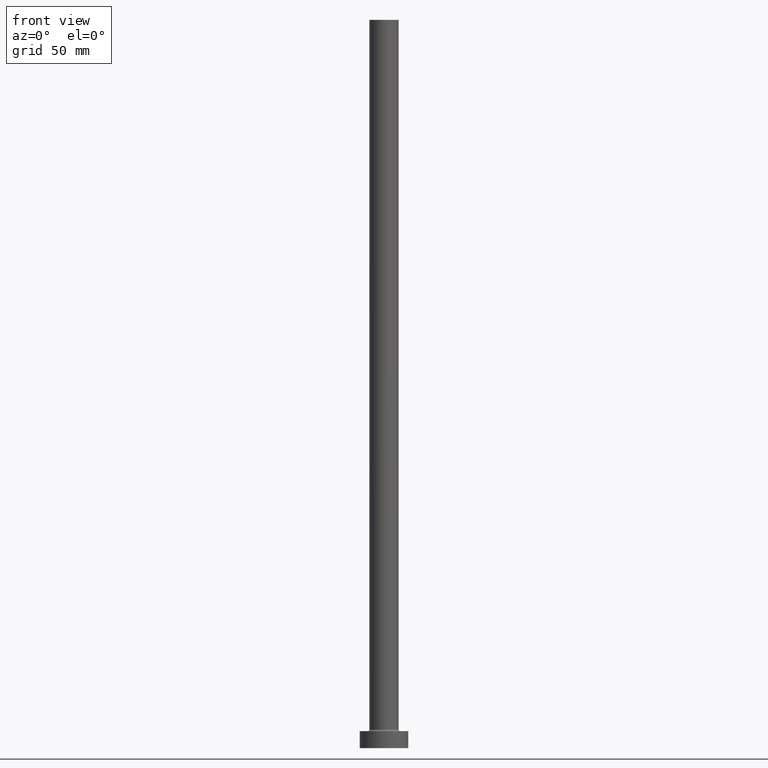
[diagram: clean part render]
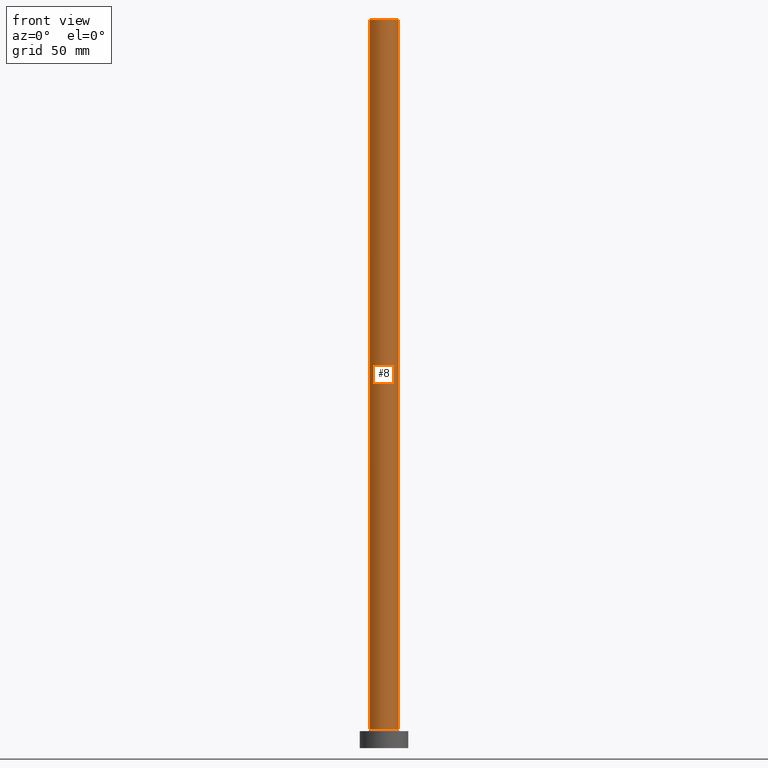
[diagram: same view with one face highlighted and labeled with its STEP entity id]
A machine part, front view. The second image highlights one B-rep face of the part: STEP entity #8.
In plain terms, the highlighted cylindrical surface (edge-blend (fillet) strip) has radius 6 mm, axis along (-0, -0, -1).
Its self-contained STEP definition (entity closure, byte-faithful):
#5 = DIRECTION ( 'NONE',  ( -0.000000000000000000, -0.000000000000000000, -1.000000000000000000 ) ) ;
#8 = ADVANCED_FACE ( 'NONE', ( #422 ), #386, .T. ) ;
#14 = CARTESIAN_POINT ( 'NONE',  ( 6.000000000000000888, 7.347880794884120722E-16, 7.699999999999985079 ) ) ;
#17 = LINE ( 'NONE', #86, #261 ) ;
#33 = EDGE_CURVE ( 'NONE', #347, #274, #377, .T. ) ;
#38 = DIRECTION ( 'NONE',  ( -1.000000000000000000, 0.000000000000000000, 0.000000000000000000 ) ) ;
#64 = VERTEX_POINT ( 'NONE', #369 ) ;
#65 = VERTEX_POINT ( 'NONE', #338 ) ;
#69 = CARTESIAN_POINT ( 'NONE',  ( 0.000000000000000000, 0.000000000000000000, 300.0000000000000000 ) ) ;
#86 = CARTESIAN_POINT ( 'NONE',  ( -6.000000000000000888, 0.000000000000000000, 300.0000000000000000 ) ) ;
#93 = CIRCLE ( 'NONE', #359, 6.000000000000000888 ) ;
#97 = ORIENTED_EDGE ( 'NONE', *, *, #368, .T. ) ;
#98 = DIRECTION ( 'NONE',  ( 1.000000000000000000, 0.000000000000000000, 0.000000000000000000 ) ) ;
#102 = DIRECTION ( 'NONE',  ( 1.000000000000000000, 0.000000000000000000, 0.000000000000000000 ) ) ;
#133 = DIRECTION ( 'NONE',  ( 0.000000000000000000, 0.000000000000000000, 1.000000000000000000 ) ) ;
#139 = CARTESIAN_POINT ( 'NONE',  ( 0.000000000000000000, 0.000000000000000000, 300.0000000000000000 ) ) ;
#158 = EDGE_CURVE ( 'NONE', #64, #274, #295, .T. ) ;
#226 = CARTESIAN_POINT ( 'NONE',  ( 6.000000000000000888, 7.347880794884120722E-16, 300.0000000000000000 ) ) ;
#240 = ORIENTED_EDGE ( 'NONE', *, *, #33, .T. ) ;
#261 = VECTOR ( 'NONE', #367, 1000.000000000000000 ) ;
#274 = VERTEX_POINT ( 'NONE', #14 ) ;
#276 = CARTESIAN_POINT ( 'NONE',  ( -6.000000000000000888, 0.000000000000000000, 7.699999999999985079 ) ) ;
#287 = ORIENTED_EDGE ( 'NONE', *, *, #158, .F. ) ;
#295 = LINE ( 'NONE', #226, #297 ) ;
#297 = VECTOR ( 'NONE', #5, 1000.000000000000000 ) ;
#303 = ORIENTED_EDGE ( 'NONE', *, *, #437, .F. ) ;
#308 = CARTESIAN_POINT ( 'NONE',  ( 0.000000000000000000, 0.000000000000000000, 7.699999999999985079 ) ) ;
#334 = AXIS2_PLACEMENT_3D ( 'NONE', #139, #353, #38 ) ;
#338 = CARTESIAN_POINT ( 'NONE',  ( -6.000000000000000888, 0.000000000000000000, 300.0000000000000000 ) ) ;
#347 = VERTEX_POINT ( 'NONE', #276 ) ;
#353 = DIRECTION ( 'NONE',  ( -0.000000000000000000, -0.000000000000000000, -1.000000000000000000 ) ) ;
#359 = AXIS2_PLACEMENT_3D ( 'NONE', #69, #418, #102 ) ;
#367 = DIRECTION ( 'NONE',  ( -0.000000000000000000, -0.000000000000000000, -1.000000000000000000 ) ) ;
#368 = EDGE_CURVE ( 'NONE', #65, #347, #17, .T. ) ;
#369 = CARTESIAN_POINT ( 'NONE',  ( 6.000000000000000888, 7.347880794884120722E-16, 300.0000000000000000 ) ) ;
#377 = CIRCLE ( 'NONE', #439, 6.000000000000000888 ) ;
#386 = CYLINDRICAL_SURFACE ( 'NONE', #334, 6.000000000000000888 ) ;
#418 = DIRECTION ( 'NONE',  ( 0.000000000000000000, 0.000000000000000000, 1.000000000000000000 ) ) ;
#422 = FACE_OUTER_BOUND ( 'NONE', #453, .T. ) ;
#437 = EDGE_CURVE ( 'NONE', #65, #64, #93, .T. ) ;
#439 = AXIS2_PLACEMENT_3D ( 'NONE', #308, #133, #98 ) ;
#453 = EDGE_LOOP ( 'NONE', ( #287, #303, #97, #240 ) ) ;